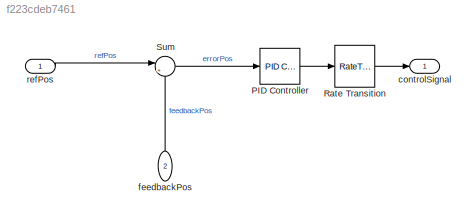
MODEL slx_f223cdeb7461
KIND model
CONFIG AbsTol = auto
CONFIG EnableMultiTasking = on
CONFIG FixedStep = 10e-6
CONFIG MaxStep = auto
CONFIG MinStep = auto
CONFIG RelTol = 1e-3
CONFIG SampleTimeConstraint = Unconstrained
CONFIG SolverName = FixedStepAuto
CONFIG StartTime = 0.0
CONFIG StopTime = 29
BLOCK [Reference] PID Controller  REF=slpidlib/PID Controller
  Ports = [1, 1]
  SourceBlock = slpidlib/PID Controller
  SourceProductBaseCode = SL
  SourceType = PID 1dof
BLOCK [RateTransition] Rate Transition
BLOCK [Sum] Sum
  Inputs = |+-
  Ports = [2, 1]
BLOCK [Outport] controlSignal
  OutDataTypeStr = double
  PortDimensions = 1
  SampleTime = [1.0000000000000001e-05,0]
  SamplingMode = Sample based
  SignalType = real
BLOCK [Inport] feedbackPos
  NameLocation = right
  OutDataTypeStr = double
  Port = 2
  PortDimensions = 1
  SampleTime = 0
  SamplingMode = Sample based
  SignalType = real
BLOCK [Inport] refPos
  OutDataTypeStr = double
  PortDimensions = 1
  SampleTime = 0
  SamplingMode = Sample based
  SignalType = real
LINE PID Controller:1 -> Rate Transition:1
LINE Rate Transition:1 -> controlSignal:1
LINE Sum:1 -> PID Controller:1
LINE feedbackPos:1 -> Sum:2
LINE refPos:1 -> Sum:1
